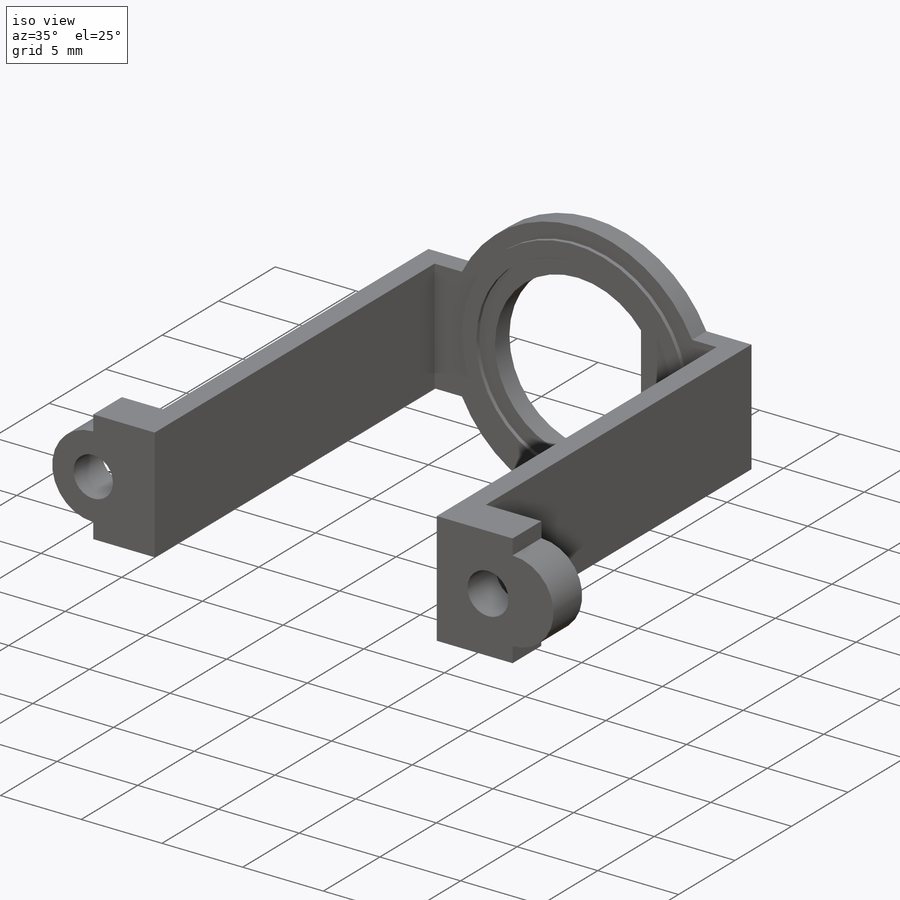
[diagram: iso view]
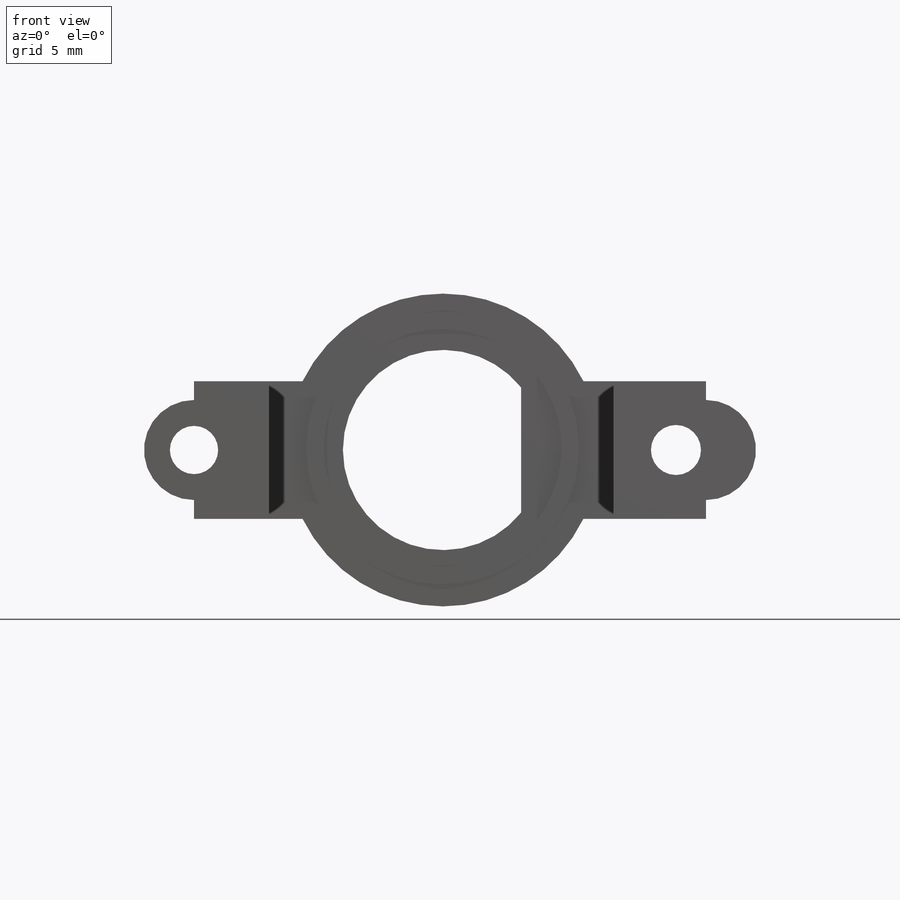
[diagram: front view]
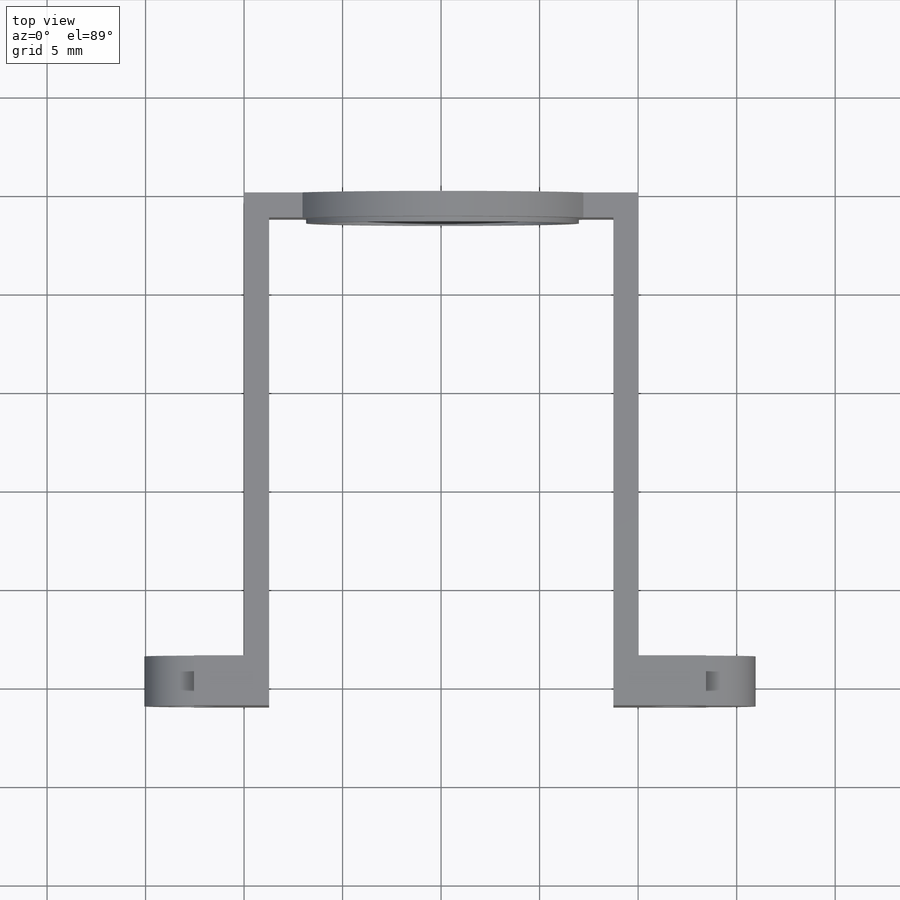
[diagram: top view]
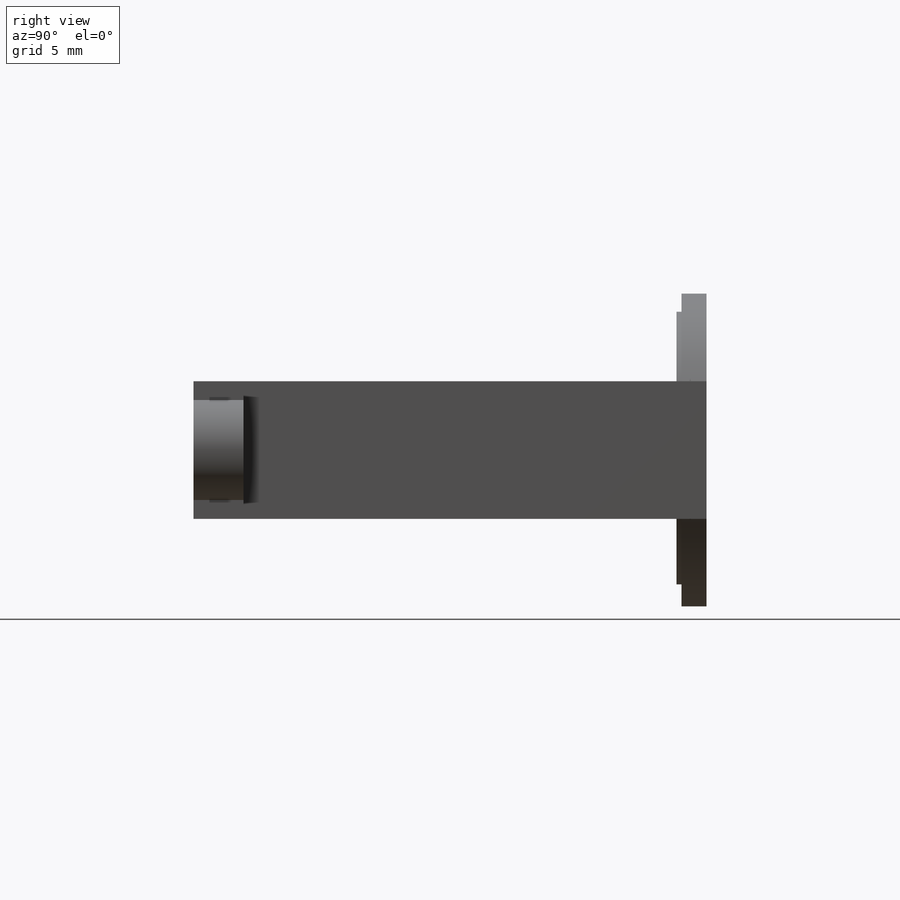
[diagram: right view]
SOLIDWORKS PART (.sldprt)
format: sldprt  version: not decoded by parser v0  size: 442,368 bytes
history: native  units: mm
features: sketch x11, extrude x6, cut_extrude x5, material x1 (+12 scaffold rows collapsed)
feature tree (35):
  scaffold x12  (default folders/planes/origin — collapsed)
  material  "Material <not specified>"
  sketch  "Sketch1"  dims[D1=20.0152mm D2=6.985mm]
  extrude  "Extrude1"  Depth=1.27mm
  sketch  "Sketch2"  dims[D1=15.875mm D2=3.4925mm D3=9.9187mm]
  extrude  "Extrude2"  Depth=1.27mm
  sketch  "Sketch3"  dims[D1=5.08mm D2=6.35mm]
  cut_extrude  "Cut-Extrude1"  Depth=2.54mm
  sketch  "Sketch4"  dims[D1=1.27mm D2=1.27mm]
  extrude  "Extrude4"  Depth=24.765mm
  sketch  "Sketch5"
  extrude  "Extrude5"  Depth=5.08mm
  sketch  "Sketch6"
  extrude  "Extrude6"  Depth=5.969mm
  sketch  "Sketch7"  dims[c1.D2=2.54mm c1.D1=0.9652mm c1.D3=0.9652mm c1.D4=2.54mm c2.D1=3.4925mm c2.D3=2.54mm c2.D5=2.54mm]
  cut_extrude  "Cut-Extrude4"  [1 undecoded]
  sketch  "Sketch8"
  cut_extrude  "Cut-Extrude5"  Depth=5.969mm
  sketch  "Sketch9"  dims[D1=~2.232207mm D2=2.54mm D3=2.54mm D4=2.54mm D5=3.4925mm]
  cut_extrude  "Cut-Extrude6"  [1 undecoded]
  sketch  "Sketch10"  dims[D3=2.54mm D1=3.4925mm D2=3.175mm]
  cut_extrude  "Cut-Extrude7"  Depth=5.969mm
  sketch  "Sketch11"  dims[D1=12.065mm D2=13.843mm]
  extrude  "Extrude7"  Depth=0.254mm
decode coverage: 17 of 22 modeling features carry decoded parameters
note: ~ marks probable driven/reference dimensions
note: 2 parameter values undecoded
note: suppression state not decoded; provenance and decode notes live in map.json
